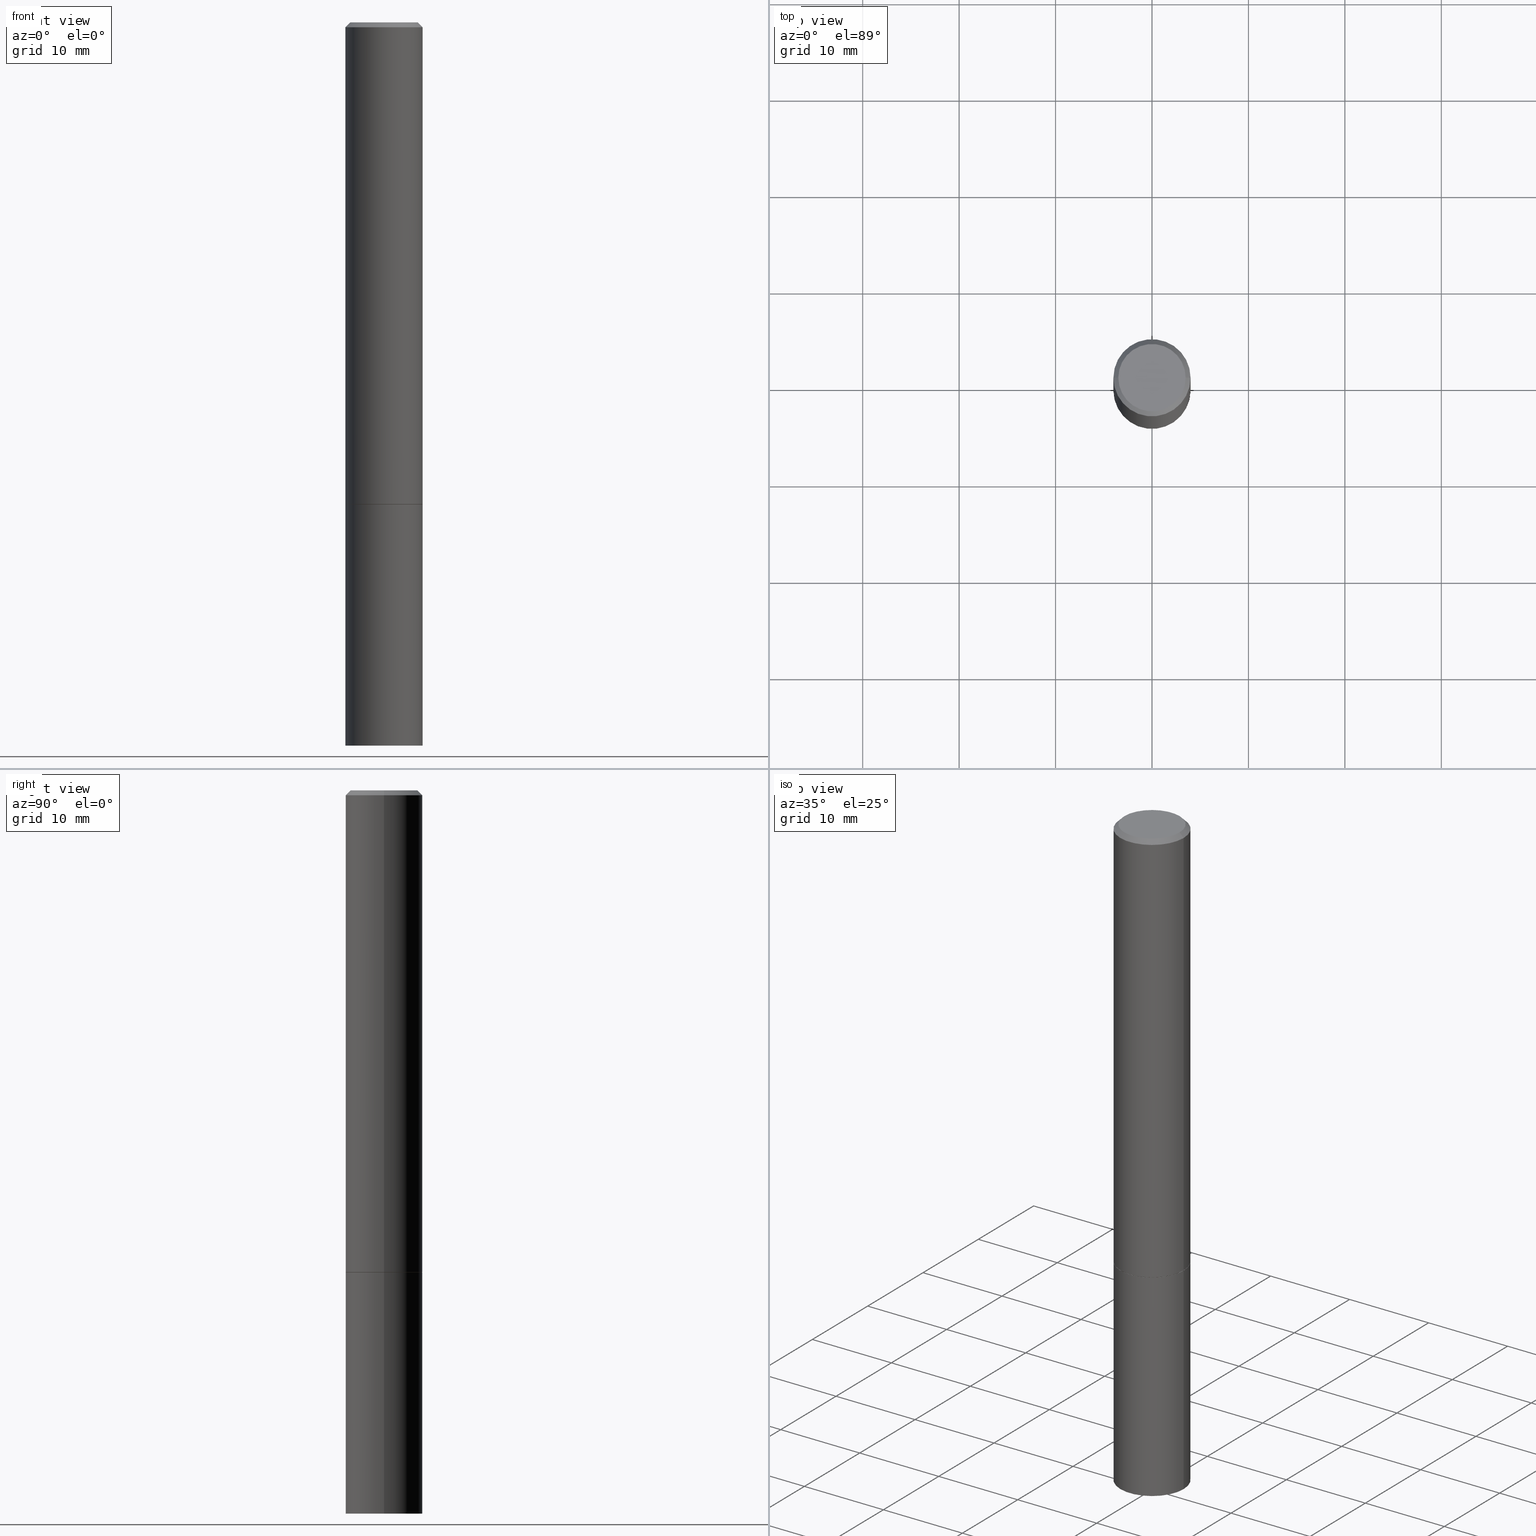
[diagram: canonical four-view strip — front | top / right | iso, engineering-drawing reading convention]
A machine part, canonical four-view strip (front | top / right | iso — engineering-drawing reading convention). The complete STEP part file that produces these views, byte-faithful:
ISO-10303-21;
HEADER;
FILE_DESCRIPTION (( 'STEP AP203' ),
    '1' );
FILE_NAME ('42611.STEP',
    '2024-02-28T03:16:31',
    ( '' ),
    ( '' ),
    'SwSTEP 2.0',
    'SolidWorks 2023',
    '' );
FILE_SCHEMA (( 'CONFIG_CONTROL_DESIGN' ));
ENDSEC;

DATA;
#1 = EDGE_LOOP ( 'NONE', ( #81, #8, #144, #278 ) ) ;
#2 = AXIS2_PLACEMENT_3D ( 'NONE', #61, #295, #33 ) ;
#3 = EDGE_CURVE ( 'NONE', #22, #167, #156, .T. ) ;
#4 = LINE ( 'NONE', #183, #116 ) ;
#5 = PRODUCT_RELATED_PRODUCT_CATEGORY ( 'detail', '', ( #118 ) ) ;
#6 = FACE_OUTER_BOUND ( 'NONE', #71, .T. ) ;
#7 = CARTESIAN_POINT ( 'NONE',  ( 9.601573681818602922E-16, 0.1374999999999998446, -4.758101716008314943E-16 ) ) ;
#8 = ORIENTED_EDGE ( 'NONE', *, *, #31, .T. ) ;
#9 = CIRCLE ( 'NONE', #283, 0.1575000000000000011 ) ;
#10 = DIRECTION ( 'NONE',  ( 1.000000000000000000, -6.982962677686267499E-15, 0.000000000000000000 ) ) ;
#11 = ORIENTED_EDGE ( 'NONE', *, *, #103, .T. ) ;
#12 = DIRECTION ( 'NONE',  ( 1.000000000000000000, -6.982962677686266711E-15, 4.876176775795935793E-29 ) ) ;
#13 = CC_DESIGN_PERSON_AND_ORGANIZATION_ASSIGNMENT ( #173, #220, ( #118 ) ) ;
#14 =( NAMED_UNIT ( * ) PLANE_ANGLE_UNIT ( ) SI_UNIT ( $, .RADIAN. ) );
#15 = CIRCLE ( 'NONE', #345, 0.1575000000000000011 ) ;
#16 = APPROVAL_PERSON_ORGANIZATION ( #304, #307, #312 ) ;
#17 = DIRECTION ( 'NONE',  ( 2.438088387897960049E-29, -3.491481338843145188E-15, -1.000000000000000000 ) ) ;
#18 = ORIENTED_EDGE ( 'NONE', *, *, #87, .F. ) ;
#19 = DIRECTION ( 'NONE',  ( 1.000000000000000000, -6.982962677686266711E-15, 4.876176775795935793E-29 ) ) ;
#20 = ORIENTED_EDGE ( 'NONE', *, *, #3, .T. ) ;
#21 = CYLINDRICAL_SURFACE ( 'NONE', #266, 0.1574999999999998901 ) ;
#22 = VERTEX_POINT ( 'NONE', #131 ) ;
#23 = PERSON_AND_ORGANIZATION ( #230, #352 ) ;
#24 = LINE ( 'NONE', #355, #223 ) ;
#25 = COORDINATED_UNIVERSAL_TIME_OFFSET ( 5, 0, .BEHIND. ) ;
#26 = APPROVAL_STATUS ( 'not_yet_approved' ) ;
#27 = CIRCLE ( 'NONE', #242, 0.1575000000000000011 ) ;
#28 = LOCAL_TIME ( 22, 16, 31.00000000000000000, #25 ) ;
#29 = ORIENTED_EDGE ( 'NONE', *, *, #342, .T. ) ;
#30 = ORIENTED_EDGE ( 'NONE', *, *, #224, .F. ) ;
#31 = EDGE_CURVE ( 'NONE', #191, #97, #24, .T. ) ;
#32 = FACE_OUTER_BOUND ( 'NONE', #275, .T. ) ;
#33 = DIRECTION ( 'NONE',  ( 1.000000000000000000, -6.982962677686265922E-15, 4.876173381029105647E-29 ) ) ;
#34 = DIRECTION ( 'NONE',  ( 1.000000000000000000, -6.982962677686267499E-15, 0.000000000000000000 ) ) ;
#35 = EDGE_LOOP ( 'NONE', ( #310, #169, #11, #134 ) ) ;
#36 = DIRECTION ( 'NONE',  ( 0.7071067811865466846, -7.319954787623252890E-15, -0.7071067811865483499 ) ) ;
#37 = DIRECTION ( 'NONE',  ( 2.445468806185136597E-29, -3.491481338843145583E-15, -1.000000000000000000 ) ) ;
#38 =( CONVERSION_BASED_UNIT ( 'INCH', #353 ) LENGTH_UNIT ( ) NAMED_UNIT ( #256 ) );
#39 = EDGE_CURVE ( 'NONE', #296, #145, #261, .T. ) ;
#40 = DIRECTION ( 'NONE',  ( 2.445468806185136597E-29, -3.491481338843145583E-15, -1.000000000000000000 ) ) ;
#41 = ORIENTED_EDGE ( 'NONE', *, *, #350, .T. ) ;
#42 = CARTESIAN_POINT ( 'NONE',  ( -0.1565000000000000002, -5.755683179699952710E-15, -1.968500000000000139 ) ) ;
#43 = ORIENTED_EDGE ( 'NONE', *, *, #45, .F. ) ;
#44 = DIRECTION ( 'NONE',  ( -2.445468806185136597E-29, 3.491481338843145583E-15, 1.000000000000000000 ) ) ;
#45 = EDGE_CURVE ( 'NONE', #296, #246, #301, .T. ) ;
#46 = ORIENTED_EDGE ( 'NONE', *, *, #55, .F. ) ;
#47 = AXIS2_PLACEMENT_3D ( 'NONE', #190, #186, #187 ) ;
#48 = DATE_AND_TIME ( #308, #28 ) ;
#49 = AXIS2_PLACEMENT_3D ( 'NONE', #316, #271, #12 ) ;
#50 = CARTESIAN_POINT ( 'NONE',  ( 0.000000000000000000, 0.000000000000000000, 0.000000000000000000 ) ) ;
#51 = PRODUCT_DEFINITION_SHAPE ( 'NONE', 'NONE',  #139 ) ;
#52 = DIRECTION ( 'NONE',  ( 1.000000000000000000, -6.982962677686261977E-15, 0.000000000000000000 ) ) ;
#53 = VECTOR ( 'NONE', #114, 39.37007874015748143 ) ;
#54 = DATE_AND_TIME ( #199, #340 ) ;
#55 = EDGE_CURVE ( 'NONE', #313, #191, #9, .T. ) ;
#56 = ORIENTED_EDGE ( 'NONE', *, *, #149, .F. ) ;
#57 = CARTESIAN_POINT ( 'NONE',  ( -2.087702828670439639E-46, 2.980686340760894400E-32, 8.537024980200822558E-18 ) ) ;
#58 = DIRECTION ( 'NONE',  ( 1.000000000000000000, -6.982962677686265922E-15, 0.000000000000000000 ) ) ;
#59 = VECTOR ( 'NONE', #235, 39.37007874015748143 ) ;
#60 = AXIS2_PLACEMENT_3D ( 'NONE', #50, #335, #104 ) ;
#61 = CARTESIAN_POINT ( 'NONE',  ( -2.087702828670439639E-46, 2.980686340760894400E-32, 8.537024980200822558E-18 ) ) ;
#62 = EDGE_CURVE ( 'NONE', #167, #22, #188, .T. ) ;
#63 = APPLICATION_CONTEXT ( 'configuration controlled 3d designs of mechanical parts and assemblies' ) ;
#64 = CARTESIAN_POINT ( 'NONE',  ( 0.1574999999999998346, -1.150358061425878091E-15, -0.02000000000000003164 ) ) ;
#65 = APPROVAL ( #225, 'UNSPECIFIED' ) ;
#66 = DIRECTION ( 'NONE',  ( 0.7071067811864267805, -2.468850131080992517E-15, 0.7071067811866682540 ) ) ;
#67 =( LENGTH_UNIT ( ) NAMED_UNIT ( * ) SI_UNIT ( $, .METRE. ) );
#68 = CARTESIAN_POINT ( 'NONE',  ( 0.1575000000000000011, -7.969306155909475391E-15, -1.967499999999999805 ) ) ;
#69 = CC_DESIGN_DATE_AND_TIME_ASSIGNMENT ( #138, #360, ( #279 ) ) ;
#70 = DIRECTION ( 'NONE',  ( -2.445468806185136597E-29, 3.491481338843145583E-15, 1.000000000000000000 ) ) ;
#71 = EDGE_LOOP ( 'NONE', ( #43, #95, #366, #338 ) ) ;
#72 = CLOSED_SHELL ( 'NONE', ( #110, #264, #274, #165, #241, #171, #281, #213 ) ) ;
#73 = APPROVAL_PERSON_ORGANIZATION ( #23, #133, #175 ) ;
#74 = CARTESIAN_POINT ( 'NONE',  ( 4.890937612370280165E-31, -6.982962677686301470E-17, -0.02000000000000003164 ) ) ;
#75 = DIRECTION ( 'NONE',  ( 1.000000000000000000, -6.982962677686267499E-15, 0.000000000000000000 ) ) ;
#76 = ADVANCED_FACE ( 'NONE', ( #292 ), #88, .T. ) ;
#77 = CARTESIAN_POINT ( 'NONE',  ( 4.813905344975441835E-29, -6.872981015512731707E-15, -1.968500000000000139 ) ) ;
#78 = ORIENTED_EDGE ( 'NONE', *, *, #305, .T. ) ;
#79 = CARTESIAN_POINT ( 'NONE',  ( 7.220980290903470182E-29, -1.030964609733603853E-14, -2.952799999999999869 ) ) ;
#80 = SECURITY_CLASSIFICATION_LEVEL ( 'unclassified' ) ;
#81 = ORIENTED_EDGE ( 'NONE', *, *, #55, .T. ) ;
#82 = CIRCLE ( 'NONE', #339, 0.1575000000000000011 ) ;
#83 = DIRECTION ( 'NONE',  ( 2.438088387897960049E-29, -3.491481338843145188E-15, -1.000000000000000000 ) ) ;
#84 = CARTESIAN_POINT ( 'NONE',  ( 4.811459876169255671E-29, -6.869489534173887122E-15, -1.967499999999999805 ) ) ;
#85 = CARTESIAN_POINT ( 'NONE',  ( -0.1575000000000000011, -7.472208747602227514E-15, -1.968499999999999694 ) ) ;
#86 = AXIS2_PLACEMENT_3D ( 'NONE', #84, #344, #315 ) ;
#87 = EDGE_CURVE ( 'NONE', #260, #22, #150, .T. ) ;
#88 = PLANE ( 'NONE',  #311 ) ;
#89 = CARTESIAN_POINT ( 'NONE',  ( 0.1374999999999998446, -1.046838268059731308E-15, 8.537024980207840646E-18 ) ) ;
#90 = EDGE_CURVE ( 'NONE', #214, #22, #349, .T. ) ;
#91 = CYLINDRICAL_SURFACE ( 'NONE', #364, 0.1575000000000000011 ) ;
#92 = ORIENTED_EDGE ( 'NONE', *, *, #87, .T. ) ;
#93 = DIRECTION ( 'NONE',  ( -2.438088387897960049E-29, 3.491481338843145188E-15, 1.000000000000000000 ) ) ;
#94 = CARTESIAN_POINT ( 'NONE',  ( 0.000000000000000000, 0.000000000000000000, 0.000000000000000000 ) ) ;
#95 = ORIENTED_EDGE ( 'NONE', *, *, #39, .T. ) ;
#96 = CARTESIAN_POINT ( 'NONE',  ( -0.1575000000000000011, -2.350554771653214846E-15, -1.967499999999999805 ) ) ;
#97 = VERTEX_POINT ( 'NONE', #85 ) ;
#98 = AXIS2_PLACEMENT_3D ( 'NONE', #347, #184, #10 ) ;
#99 = PLANE ( 'NONE',  #164 ) ;
#100 = ORIENTED_EDGE ( 'NONE', *, *, #350, .F. ) ;
#101 = PERSON_AND_ORGANIZATION ( #230, #352 ) ;
#102 = EDGE_LOOP ( 'NONE', ( #78, #41 ) ) ;
#103 = EDGE_CURVE ( 'NONE', #303, #167, #209, .T. ) ;
#104 = DIRECTION ( 'NONE',  ( 1.000000000000000000, 0.000000000000000000, 0.000000000000000000 ) ) ;
#105 = AXIS2_PLACEMENT_3D ( 'NONE', #74, #40, #215 ) ;
#106 = PERSON_AND_ORGANIZATION ( #230, #352 ) ;
#107 = CC_DESIGN_SECURITY_CLASSIFICATION ( #279, ( #185 ) ) ;
#108 = COORDINATED_UNIVERSAL_TIME_OFFSET ( 5, 0, .BEHIND. ) ;
#109 = EDGE_LOOP ( 'NONE', ( #56, #244, #20, #119 ) ) ;
#110 = ADVANCED_FACE ( 'NONE', ( #263 ), #357, .T. ) ;
#111 = FACE_OUTER_BOUND ( 'NONE', #35, .T. ) ;
#112 = CC_DESIGN_APPROVAL ( #133, ( #279 ) ) ;
#113 = CARTESIAN_POINT ( 'NONE',  ( 4.813905344975441835E-29, -6.872981015512731707E-15, -1.968500000000000139 ) ) ;
#114 = DIRECTION ( 'NONE',  ( -2.445468806185136877E-29, 3.491481338843145188E-15, 1.000000000000000000 ) ) ;
#115 = DIRECTION ( 'NONE',  ( -2.445468806185136597E-29, 3.491481338843145583E-15, 1.000000000000000000 ) ) ;
#116 = VECTOR ( 'NONE', #341, 39.37007874015748143 ) ;
#117 = LOCAL_TIME ( 22, 16, 31.00000000000000000, #333 ) ;
#118 = PRODUCT ( '42611', '42611', '', ( #253 ) ) ;
#119 = ORIENTED_EDGE ( 'NONE', *, *, #103, .F. ) ;
#120 = CARTESIAN_POINT ( 'NONE',  ( 4.890937612370280165E-31, -6.982962677686301470E-17, -0.02000000000000003164 ) ) ;
#121 = EDGE_CURVE ( 'NONE', #313, #320, #4, .T. ) ;
#122 = EDGE_LOOP ( 'NONE', ( #249, #160 ) ) ;
#123 = CARTESIAN_POINT ( 'NONE',  ( 0.000000000000000000, 0.000000000000000000, 0.000000000000000000 ) ) ;
#124 = ORIENTED_EDGE ( 'NONE', *, *, #31, .F. ) ;
#125 = CC_DESIGN_PERSON_AND_ORGANIZATION_ASSIGNMENT ( #106, #285, ( #185 ) ) ;
#126 = DIRECTION ( 'NONE',  ( 1.000000000000000000, -6.982962677686267499E-15, 0.000000000000000000 ) ) ;
#127 = AXIS2_PLACEMENT_3D ( 'NONE', #77, #297, #126 ) ;
#128 = CC_DESIGN_APPROVAL ( #65, ( #139 ) ) ;
#129 = DIRECTION ( 'NONE',  ( -2.445468806185136877E-29, 3.491481338843145188E-15, 1.000000000000000000 ) ) ;
#130 = FACE_OUTER_BOUND ( 'NONE', #109, .T. ) ;
#131 = CARTESIAN_POINT ( 'NONE',  ( 0.1574999999999998346, -1.150358061425878091E-15, -0.02000000000000003164 ) ) ;
#132 = CARTESIAN_POINT ( 'NONE',  ( 0.1575000000000000011, -1.140946271907162522E-14, -2.952799999999999869 ) ) ;
#133 = APPROVAL ( #195, 'UNSPECIFIED' ) ;
#134 = ORIENTED_EDGE ( 'NONE', *, *, #62, .T. ) ;
#135 = AXIS2_PLACEMENT_3D ( 'NONE', #57, #179, #288 ) ;
#136 = PERSON_AND_ORGANIZATION ( #230, #352 ) ;
#137 = DIRECTION ( 'NONE',  ( -2.445468806185136877E-29, 3.491481338843145188E-15, 1.000000000000000000 ) ) ;
#138 = DATE_AND_TIME ( #250, #117 ) ;
#139 = PRODUCT_DEFINITION ( 'UNKNOWN', '', #185, #162 ) ;
#140 = APPROVAL_DATE_TIME ( #54, #307 ) ;
#141 = CIRCLE ( 'NONE', #47, 0.1575000000000000011 ) ;
#142 = APPROVAL_DATE_TIME ( #255, #133 ) ;
#143 = APPROVAL_DATE_TIME ( #222, #65 ) ;
#144 = ORIENTED_EDGE ( 'NONE', *, *, #305, .F. ) ;
#145 = VERTEX_POINT ( 'NONE', #294 ) ;
#146 = CIRCLE ( 'NONE', #127, 0.1565000000000000002 ) ;
#147 = DIRECTION ( 'NONE',  ( -2.445468806185136597E-29, 3.491481338843145583E-15, 1.000000000000000000 ) ) ;
#148 =( GEOMETRIC_REPRESENTATION_CONTEXT ( 3 ) GLOBAL_UNCERTAINTY_ASSIGNED_CONTEXT ( ( #151 ) ) GLOBAL_UNIT_ASSIGNED_CONTEXT ( ( #38, #14, #166 ) ) REPRESENTATION_CONTEXT ( 'NONE', 'WORKASPACE' ) );
#149 = EDGE_CURVE ( 'NONE', #214, #303, #197, .T. ) ;
#150 = LINE ( 'NONE', #208, #53 ) ;
#151 = UNCERTAINTY_MEASURE_WITH_UNIT (LENGTH_MEASURE( 1.000000000000000082E-05 ), #38, 'distance_accuracy_value', 'NONE');
#152 = CC_DESIGN_PERSON_AND_ORGANIZATION_ASSIGNMENT ( #198, #276, ( #279 ) ) ;
#153 = CARTESIAN_POINT ( 'NONE',  ( 0.000000000000000000, 0.000000000000000000, 0.000000000000000000 ) ) ;
#154 = ORIENTED_EDGE ( 'NONE', *, *, #192, .F. ) ;
#155 = CARTESIAN_POINT ( 'NONE',  ( 1.099816621735659069E-15, 0.1574999999999896760, -2.952800000000000313 ) ) ;
#156 = CIRCLE ( 'NONE', #289, 0.1574999999999998346 ) ;
#157 = AXIS2_PLACEMENT_3D ( 'NONE', #7, #83, #237 ) ;
#158 = ORIENTED_EDGE ( 'NONE', *, *, #149, .T. ) ;
#159 = FACE_OUTER_BOUND ( 'NONE', #1, .T. ) ;
#160 = ORIENTED_EDGE ( 'NONE', *, *, #39, .F. ) ;
#161 = DIRECTION ( 'NONE',  ( -2.445468806185136597E-29, 3.491481338843145583E-15, 1.000000000000000000 ) ) ;
#162 = DESIGN_CONTEXT ( 'detailed design', #63, 'design' ) ;
#163 = DIRECTION ( 'NONE',  ( 1.000000000000000000, -6.982962677686265922E-15, 4.876176775795935793E-29 ) ) ;
#164 = AXIS2_PLACEMENT_3D ( 'NONE', #218, #17, #328 ) ;
#165 = ADVANCED_FACE ( 'NONE', ( #111 ), #234, .T. ) ;
#166 =( NAMED_UNIT ( * ) SI_UNIT ( $, .STERADIAN. ) SOLID_ANGLE_UNIT ( ) );
#167 = VERTEX_POINT ( 'NONE', #262 ) ;
#168 = FACE_OUTER_BOUND ( 'NONE', #122, .T. ) ;
#169 = ORIENTED_EDGE ( 'NONE', *, *, #238, .F. ) ;
#170 = DIRECTION ( 'NONE',  ( 1.000000000000000000, -6.982962677686268288E-15, 0.000000000000000000 ) ) ;
#171 = ADVANCED_FACE ( 'NONE', ( #6 ), #254, .T. ) ;
#172 = EDGE_LOOP ( 'NONE', ( #240, #329, #154, #30 ) ) ;
#173 = PERSON_AND_ORGANIZATION ( #230, #352 ) ;
#174 = PERSON_AND_ORGANIZATION ( #230, #352 ) ;
#175 = APPROVAL_ROLE ( '' ) ;
#176 = VECTOR ( 'NONE', #332, 39.37007874015748143 ) ;
#177 = EDGE_LOOP ( 'NONE', ( #46, #194 ) ) ;
#178 = ORIENTED_EDGE ( 'NONE', *, *, #62, .F. ) ;
#179 = DIRECTION ( 'NONE',  ( -2.445468806185136597E-29, 3.491481338843145583E-15, 1.000000000000000000 ) ) ;
#180 = AXIS2_PLACEMENT_3D ( 'NONE', #153, #232, #268 ) ;
#181 = DIRECTION ( 'NONE',  ( -1.000000000000000000, 6.982962677686265922E-15, -4.876176775795935793E-29 ) ) ;
#182 = CYLINDRICAL_SURFACE ( 'NONE', #180, 0.1575000000000000011 ) ;
#183 = CARTESIAN_POINT ( 'NONE',  ( 0.1575000000000000011, -1.099816621735586889E-15, 7.679978421878598033E-30 ) ) ;
#184 = DIRECTION ( 'NONE',  ( -2.445468806185136597E-29, 3.491481338843145583E-15, 1.000000000000000000 ) ) ;
#185 = PRODUCT_DEFINITION_FORMATION_WITH_SPECIFIED_SOURCE ( 'ANY', '', #118, .NOT_KNOWN. ) ;
#186 = DIRECTION ( 'NONE',  ( -2.445468806185136597E-29, 3.491481338843145583E-15, 1.000000000000000000 ) ) ;
#187 = DIRECTION ( 'NONE',  ( 1.000000000000000000, -6.982962677686268288E-15, 0.000000000000000000 ) ) ;
#188 = CIRCLE ( 'NONE', #326, 0.1574999999999998346 ) ;
#189 = ORIENTED_EDGE ( 'NONE', *, *, #3, .F. ) ;
#190 = CARTESIAN_POINT ( 'NONE',  ( 4.813905344975440714E-29, -6.872981015512730918E-15, -1.968499999999999694 ) ) ;
#191 = VERTEX_POINT ( 'NONE', #205 ) ;
#192 = EDGE_CURVE ( 'NONE', #260, #246, #212, .T. ) ;
#193 = DIRECTION ( 'NONE',  ( 1.000000000000000000, -6.982962677686261977E-15, 0.000000000000000000 ) ) ;
#194 = ORIENTED_EDGE ( 'NONE', *, *, #342, .F. ) ;
#195 = APPROVAL_STATUS ( 'not_yet_approved' ) ;
#196 = CC_DESIGN_DATE_AND_TIME_ASSIGNMENT ( #48, #282, ( #139 ) ) ;
#197 = CIRCLE ( 'NONE', #2, 0.1374999999999998446 ) ;
#198 = PERSON_AND_ORGANIZATION ( #230, #352 ) ;
#199 = CALENDAR_DATE ( 2024, 27, 2 ) ;
#200 = DIRECTION ( 'NONE',  ( -2.445468806185136597E-29, 3.491481338843145583E-15, 1.000000000000000000 ) ) ;
#201 = MANIFOLD_SOLID_BREP ( 'Body-Move/Copy2[2]', #72 ) ;
#202 = ORIENTED_EDGE ( 'NONE', *, *, #192, .T. ) ;
#203 = DIRECTION ( 'NONE',  ( 1.000000000000000000, -6.982962677686268288E-15, 0.000000000000000000 ) ) ;
#204 = MANIFOLD_SOLID_BREP ( 'Body-Move/Copy2[1]', #363 ) ;
#205 = CARTESIAN_POINT ( 'NONE',  ( -0.1575000000000000011, -7.472208747602227514E-15, -2.952799999999999869 ) ) ;
#206 = AXIS2_PLACEMENT_3D ( 'NONE', #251, #327, #75 ) ;
#207 = LINE ( 'NONE', #322, #298 ) ;
#208 = CARTESIAN_POINT ( 'NONE',  ( 0.1574999999999998901, -1.099816621735586297E-15, 7.679978421878593829E-30 ) ) ;
#209 = LINE ( 'NONE', #319, #59 ) ;
#210 = DIRECTION ( 'NONE',  ( 1.000000000000000000, -6.982962677686265922E-15, 4.876176775795935232E-29 ) ) ;
#211 = AXIS2_PLACEMENT_3D ( 'NONE', #113, #321, #34 ) ;
#212 = CIRCLE ( 'NONE', #86, 0.1575000000000000011 ) ;
#213 = ADVANCED_FACE ( 'NONE', ( #290 ), #229, .F. ) ;
#214 = VERTEX_POINT ( 'NONE', #89 ) ;
#215 = DIRECTION ( 'NONE',  ( -1.000000000000000000, 6.982962677686265922E-15, 0.000000000000000000 ) ) ;
#216 = CIRCLE ( 'NONE', #135, 0.1374999999999998446 ) ;
#217 = EDGE_LOOP ( 'NONE', ( #348, #158 ) ) ;
#218 = CARTESIAN_POINT ( 'NONE',  ( 1.099816621735634812E-15, 0.1574999999999931177, -1.968500000000000361 ) ) ;
#219 = CARTESIAN_POINT ( 'NONE',  ( 4.890937612370280165E-31, -6.982962677686301470E-17, -0.02000000000000003164 ) ) ;
#220 = PERSON_AND_ORGANIZATION_ROLE ( 'design_owner' ) ;
#221 = DIRECTION ( 'NONE',  ( 1.000000000000000000, -6.982962677686265922E-15, 0.000000000000000000 ) ) ;
#222 = DATE_AND_TIME ( #337, #346 ) ;
#223 = VECTOR ( 'NONE', #137, 39.37007874015748143 ) ;
#224 = EDGE_CURVE ( 'NONE', #145, #260, #207, .T. ) ;
#225 = APPROVAL_STATUS ( 'not_yet_approved' ) ;
#226 = ORIENTED_EDGE ( 'NONE', *, *, #121, .T. ) ;
#227 = ADVANCED_FACE ( 'NONE', ( #159 ), #182, .T. ) ;
#228 = VECTOR ( 'NONE', #36, 39.37007874015748143 ) ;
#229 = PLANE ( 'NONE',  #157 ) ;
#230 = PERSON ( 'UNSPECIFIED', 'UNSPECIFIED', 'UNSPECIFIED', ('UNSPECIFIED'), ('UNSPECIFIED'), ('UNSPECIFIED') ) ;
#231 = EDGE_CURVE ( 'NONE', #246, #260, #15, .T. ) ;
#232 = DIRECTION ( 'NONE',  ( -2.445468806185136597E-29, 3.491481338843145583E-15, 1.000000000000000000 ) ) ;
#233 = DIRECTION ( 'NONE',  ( -1.000000000000000000, 6.982962677686265922E-15, 0.000000000000000000 ) ) ;
#234 = CONICAL_SURFACE ( 'NONE', #277, 0.1574999999999998346, 0.7853981633974471688 ) ;
#235 = DIRECTION ( 'NONE',  ( -0.7071067811865466846, 2.468850131082247989E-15, -0.7071067811865483499 ) ) ;
#236 = APPLICATION_CONTEXT ( 'configuration controlled 3d designs of mechanical parts and assemblies' ) ;
#237 = DIRECTION ( 'NONE',  ( -1.000000000000000000, 6.982962677686265922E-15, -4.876176775795935793E-29 ) ) ;
#238 = EDGE_CURVE ( 'NONE', #303, #214, #216, .T. ) ;
#239 = CARTESIAN_POINT ( 'NONE',  ( 4.813905344975440714E-29, -6.872981015512730918E-15, -1.968499999999999694 ) ) ;
#240 = ORIENTED_EDGE ( 'NONE', *, *, #336, .T. ) ;
#241 = ADVANCED_FACE ( 'NONE', ( #32 ), #343, .T. ) ;
#242 = AXIS2_PLACEMENT_3D ( 'NONE', #239, #44, #170 ) ;
#243 = DIRECTION ( 'NONE',  ( -2.445468806185136597E-29, 3.491481338843145583E-15, 1.000000000000000000 ) ) ;
#244 = ORIENTED_EDGE ( 'NONE', *, *, #90, .T. ) ;
#245 = CARTESIAN_POINT ( 'NONE',  ( 7.220980290903470182E-29, -1.030964609733603853E-14, -2.952799999999999869 ) ) ;
#246 = VERTEX_POINT ( 'NONE', #96 ) ;
#247 = CARTESIAN_POINT ( 'NONE',  ( 0.1575000000000000011, -7.972797637248318399E-15, -1.968499999999999694 ) ) ;
#248 = CONICAL_SURFACE ( 'NONE', #105, 0.1574999999999998346, 0.7853981633974471688 ) ;
#249 = ORIENTED_EDGE ( 'NONE', *, *, #336, .F. ) ;
#250 = CALENDAR_DATE ( 2024, 27, 2 ) ;
#251 = CARTESIAN_POINT ( 'NONE',  ( 4.813905344975441835E-29, -6.872981015512731707E-15, -1.968500000000000139 ) ) ;
#252 = SHAPE_DEFINITION_REPRESENTATION ( #51, #259 ) ;
#253 = MECHANICAL_CONTEXT ( 'NONE', #236, 'mechanical' ) ;
#254 = CONICAL_SURFACE ( 'NONE', #211, 0.1565000000000000002, 0.7853981633972775267 ) ;
#255 = DATE_AND_TIME ( #309, #284 ) ;
#256 = DIMENSIONAL_EXPONENTS ( 1.000000000000000000, 0.000000000000000000, 0.000000000000000000, 0.000000000000000000, 0.000000000000000000, 0.000000000000000000, 0.000000000000000000 ) ;
#257 = COORDINATED_UNIVERSAL_TIME_OFFSET ( 5, 0, .BEHIND. ) ;
#258 = ORIENTED_EDGE ( 'NONE', *, *, #231, .T. ) ;
#259 = ADVANCED_BREP_SHAPE_REPRESENTATION ( '42611', ( #204, #201, #60 ), #148 ) ;
#260 = VERTEX_POINT ( 'NONE', #68 ) ;
#261 = CIRCLE ( 'NONE', #206, 0.1565000000000000002 ) ;
#262 = CARTESIAN_POINT ( 'NONE',  ( -0.1574999999999998346, 1.029986994958722802E-15, -0.02000000000000003164 ) ) ;
#263 = FACE_OUTER_BOUND ( 'NONE', #172, .T. ) ;
#264 = ADVANCED_FACE ( 'NONE', ( #325 ), #21, .T. ) ;
#265 = CARTESIAN_POINT ( 'NONE',  ( 4.811459876169255671E-29, -6.869489534173887122E-15, -1.967499999999999805 ) ) ;
#266 = AXIS2_PLACEMENT_3D ( 'NONE', #123, #70, #19 ) ;
#267 = DIRECTION ( 'NONE',  ( 2.438088387897960049E-29, -3.491481338843145188E-15, -1.000000000000000000 ) ) ;
#268 = DIRECTION ( 'NONE',  ( 1.000000000000000000, -6.982962677686265922E-15, 4.876176775795935232E-29 ) ) ;
#269 = CARTESIAN_POINT ( 'NONE',  ( -0.1374999999999998446, 9.950721815702915469E-16, 8.537024980193986277E-18 ) ) ;
#270 = CC_DESIGN_APPROVAL ( #307, ( #185 ) ) ;
#271 = DIRECTION ( 'NONE',  ( -2.445468806185136597E-29, 3.491481338843145583E-15, 1.000000000000000000 ) ) ;
#272 = DIRECTION ( 'NONE',  ( -2.445468806185136597E-29, 3.491481338843145583E-15, 1.000000000000000000 ) ) ;
#273 = CARTESIAN_POINT ( 'NONE',  ( -0.1574999999999998901, 1.119104808822157012E-15, -7.747322767151471379E-30 ) ) ;
#274 = ADVANCED_FACE ( 'NONE', ( #130 ), #248, .T. ) ;
#275 = EDGE_LOOP ( 'NONE', ( #324, #258, #92, #178 ) ) ;
#276 = PERSON_AND_ORGANIZATION_ROLE ( 'classification_officer' ) ;
#277 = AXIS2_PLACEMENT_3D ( 'NONE', #120, #37, #233 ) ;
#278 = ORIENTED_EDGE ( 'NONE', *, *, #121, .F. ) ;
#279 = SECURITY_CLASSIFICATION ( '', '', #80 ) ;
#280 = COORDINATED_UNIVERSAL_TIME_OFFSET ( 5, 0, .BEHIND. ) ;
#281 = ADVANCED_FACE ( 'NONE', ( #168 ), #356, .F. ) ;
#282 = DATE_TIME_ROLE ( 'creation_date' ) ;
#283 = AXIS2_PLACEMENT_3D ( 'NONE', #79, #200, #52 ) ;
#284 = LOCAL_TIME ( 22, 16, 31.00000000000000000, #280 ) ;
#285 = PERSON_AND_ORGANIZATION_ROLE ( 'design_supplier' ) ;
#286 = CARTESIAN_POINT ( 'NONE',  ( 4.890937612370280165E-31, -6.982962677686301470E-17, -0.02000000000000003164 ) ) ;
#287 = ORIENTED_EDGE ( 'NONE', *, *, #291, .T. ) ;
#288 = DIRECTION ( 'NONE',  ( 1.000000000000000000, -6.982962677686265922E-15, 4.876173381029105647E-29 ) ) ;
#289 = AXIS2_PLACEMENT_3D ( 'NONE', #219, #272, #221 ) ;
#290 = FACE_OUTER_BOUND ( 'NONE', #217, .T. ) ;
#291 = EDGE_CURVE ( 'NONE', #246, #167, #300, .T. ) ;
#292 = FACE_OUTER_BOUND ( 'NONE', #177, .T. ) ;
#293 = CC_DESIGN_PERSON_AND_ORGANIZATION_ASSIGNMENT ( #136, #306, ( #139 ) ) ;
#294 = CARTESIAN_POINT ( 'NONE',  ( 0.1565000000000000002, -7.965814674570632384E-15, -1.968500000000000139 ) ) ;
#295 = DIRECTION ( 'NONE',  ( -2.445468806185136597E-29, 3.491481338843145583E-15, 1.000000000000000000 ) ) ;
#296 = VERTEX_POINT ( 'NONE', #42 ) ;
#297 = DIRECTION ( 'NONE',  ( -2.445468806185136597E-29, 3.491481338843145583E-15, 1.000000000000000000 ) ) ;
#298 = VECTOR ( 'NONE', #66, 39.37007874015748143 ) ;
#299 = EDGE_LOOP ( 'NONE', ( #124, #29, #226, #100 ) ) ;
#300 = LINE ( 'NONE', #273, #317 ) ;
#301 = LINE ( 'NONE', #361, #176 ) ;
#302 = CARTESIAN_POINT ( 'NONE',  ( 4.813905344975441835E-29, -6.872981015512731707E-15, -1.968500000000000139 ) ) ;
#303 = VERTEX_POINT ( 'NONE', #269 ) ;
#304 = PERSON_AND_ORGANIZATION ( #230, #352 ) ;
#305 = EDGE_CURVE ( 'NONE', #320, #97, #141, .T. ) ;
#306 = PERSON_AND_ORGANIZATION_ROLE ( 'creator' ) ;
#307 = APPROVAL ( #26, 'UNSPECIFIED' ) ;
#308 = CALENDAR_DATE ( 2024, 27, 2 ) ;
#309 = CALENDAR_DATE ( 2024, 27, 2 ) ;
#310 = ORIENTED_EDGE ( 'NONE', *, *, #90, .F. ) ;
#311 = AXIS2_PLACEMENT_3D ( 'NONE', #155, #267, #181 ) ;
#312 = APPROVAL_ROLE ( '' ) ;
#313 = VERTEX_POINT ( 'NONE', #132 ) ;
#314 = CC_DESIGN_PERSON_AND_ORGANIZATION_ASSIGNMENT ( #101, #331, ( #185 ) ) ;
#315 = DIRECTION ( 'NONE',  ( 1.000000000000000000, -6.982962677686268288E-15, 0.000000000000000000 ) ) ;
#316 = CARTESIAN_POINT ( 'NONE',  ( 0.000000000000000000, 0.000000000000000000, 0.000000000000000000 ) ) ;
#317 = VECTOR ( 'NONE', #129, 39.37007874015748143 ) ;
#318 = APPROVAL_PERSON_ORGANIZATION ( #174, #65, #334 ) ;
#319 = CARTESIAN_POINT ( 'NONE',  ( -0.1574999999999998346, 1.029986994958722802E-15, -0.02000000000000003164 ) ) ;
#320 = VERTEX_POINT ( 'NONE', #247 ) ;
#321 = DIRECTION ( 'NONE',  ( -2.445468806185136597E-29, 3.491481338843145583E-15, 1.000000000000000000 ) ) ;
#322 = CARTESIAN_POINT ( 'NONE',  ( 0.1565000000000000002, -7.965814674570632384E-15, -1.968500000000000139 ) ) ;
#323 = AXIS2_PLACEMENT_3D ( 'NONE', #302, #93, #163 ) ;
#324 = ORIENTED_EDGE ( 'NONE', *, *, #291, .F. ) ;
#325 = FACE_OUTER_BOUND ( 'NONE', #358, .T. ) ;
#326 = AXIS2_PLACEMENT_3D ( 'NONE', #286, #147, #58 ) ;
#327 = DIRECTION ( 'NONE',  ( -2.445468806185136597E-29, 3.491481338843145583E-15, 1.000000000000000000 ) ) ;
#328 = DIRECTION ( 'NONE',  ( -1.000000000000000000, 6.982962677686265922E-15, -4.876176775795935793E-29 ) ) ;
#329 = ORIENTED_EDGE ( 'NONE', *, *, #45, .T. ) ;
#330 = ADVANCED_FACE ( 'NONE', ( #354 ), #99, .F. ) ;
#331 = PERSON_AND_ORGANIZATION_ROLE ( 'creator' ) ;
#332 = DIRECTION ( 'NONE',  ( -0.7071067811864267805, 7.493145998869918709E-15, 0.7071067811866682540 ) ) ;
#333 = COORDINATED_UNIVERSAL_TIME_OFFSET ( 5, 0, .BEHIND. ) ;
#334 = APPROVAL_ROLE ( '' ) ;
#335 = DIRECTION ( 'NONE',  ( 0.000000000000000000, 0.000000000000000000, 1.000000000000000000 ) ) ;
#336 = EDGE_CURVE ( 'NONE', #145, #296, #146, .T. ) ;
#337 = CALENDAR_DATE ( 2024, 27, 2 ) ;
#338 = ORIENTED_EDGE ( 'NONE', *, *, #231, .F. ) ;
#339 = AXIS2_PLACEMENT_3D ( 'NONE', #245, #243, #193 ) ;
#340 = LOCAL_TIME ( 22, 16, 31.00000000000000000, #108 ) ;
#341 = DIRECTION ( 'NONE',  ( -2.445468806185136877E-29, 3.491481338843145188E-15, 1.000000000000000000 ) ) ;
#342 = EDGE_CURVE ( 'NONE', #191, #313, #82, .T. ) ;
#343 = CYLINDRICAL_SURFACE ( 'NONE', #49, 0.1574999999999998901 ) ;
#344 = DIRECTION ( 'NONE',  ( -2.445468806185136597E-29, 3.491481338843145583E-15, 1.000000000000000000 ) ) ;
#345 = AXIS2_PLACEMENT_3D ( 'NONE', #265, #115, #203 ) ;
#346 = LOCAL_TIME ( 22, 16, 31.00000000000000000, #257 ) ;
#347 = CARTESIAN_POINT ( 'NONE',  ( 4.813905344975441835E-29, -6.872981015512731707E-15, -1.968500000000000139 ) ) ;
#348 = ORIENTED_EDGE ( 'NONE', *, *, #238, .T. ) ;
#349 = LINE ( 'NONE', #64, #228 ) ;
#350 = EDGE_CURVE ( 'NONE', #97, #320, #27, .T. ) ;
#351 = FACE_OUTER_BOUND ( 'NONE', #299, .T. ) ;
#352 = ORGANIZATION ( 'UNSPECIFIED', 'UNSPECIFIED', '' ) ;
#353 = LENGTH_MEASURE_WITH_UNIT ( LENGTH_MEASURE( 0.02539999999999999897 ), #67 );
#354 = FACE_OUTER_BOUND ( 'NONE', #102, .T. ) ;
#355 = CARTESIAN_POINT ( 'NONE',  ( -0.1575000000000000011, 1.119104808822157801E-15, -7.747322767151475583E-30 ) ) ;
#356 = PLANE ( 'NONE',  #323 ) ;
#357 = CONICAL_SURFACE ( 'NONE', #98, 0.1565000000000000002, 0.7853981633972775267 ) ;
#358 = EDGE_LOOP ( 'NONE', ( #202, #287, #189, #18 ) ) ;
#359 = ADVANCED_FACE ( 'NONE', ( #351 ), #91, .T. ) ;
#360 = DATE_TIME_ROLE ( 'classification_date' ) ;
#361 = CARTESIAN_POINT ( 'NONE',  ( -0.1565000000000000002, -5.760981634048175901E-15, -1.968500000000000139 ) ) ;
#362 = APPLICATION_PROTOCOL_DEFINITION ( 'international standard', 'config_control_design', 1994, #63 ) ;
#363 = CLOSED_SHELL ( 'NONE', ( #227, #76, #330, #359 ) ) ;
#364 = AXIS2_PLACEMENT_3D ( 'NONE', #94, #161, #210 ) ;
#365 = APPLICATION_PROTOCOL_DEFINITION ( 'international standard', 'config_control_design', 1994, #236 ) ;
#366 = ORIENTED_EDGE ( 'NONE', *, *, #224, .T. ) ;
ENDSEC;
END-ISO-10303-21;
